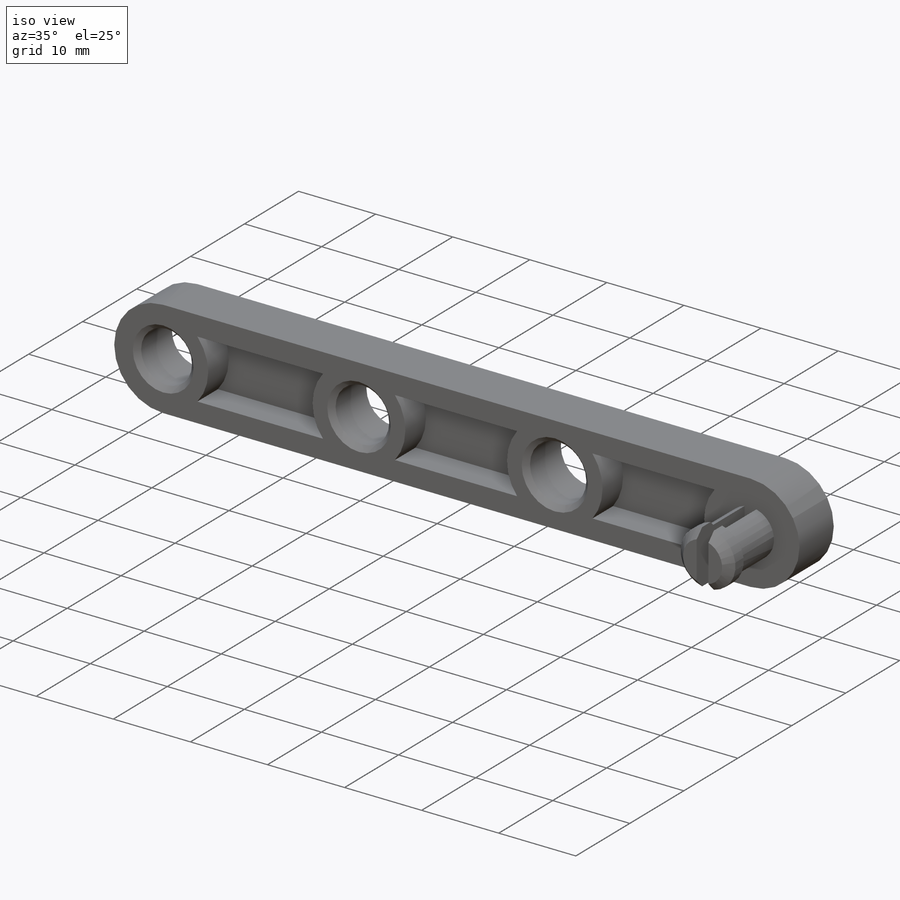
[diagram: iso view]
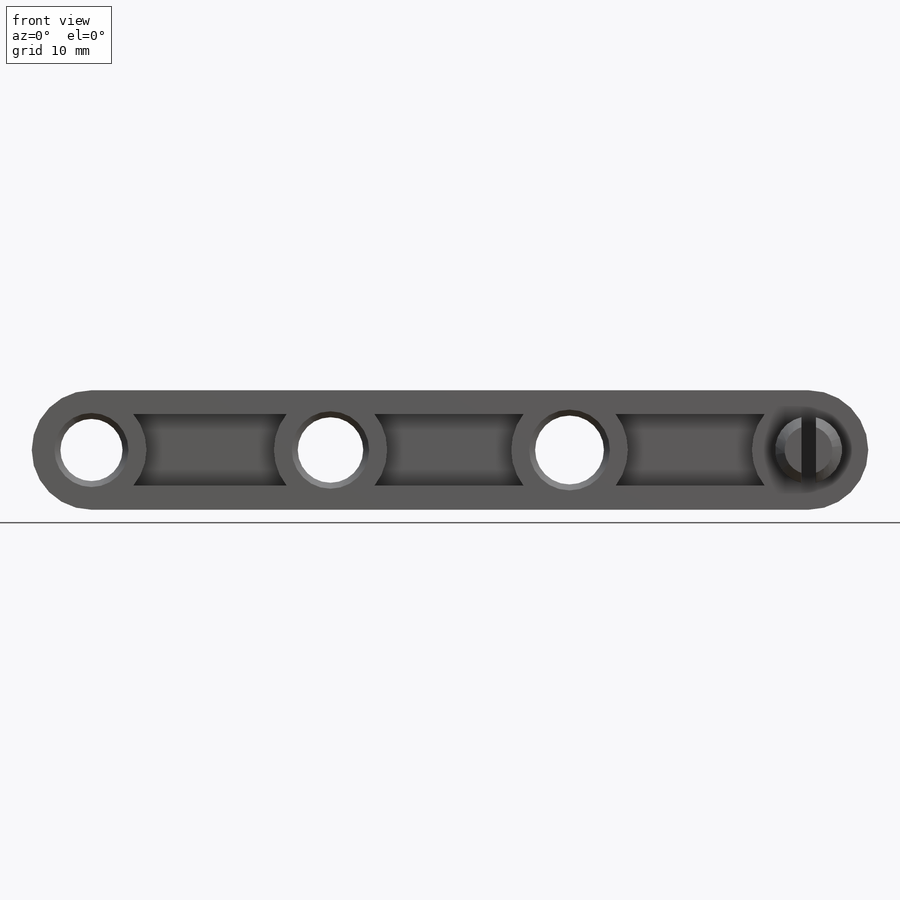
[diagram: front view]
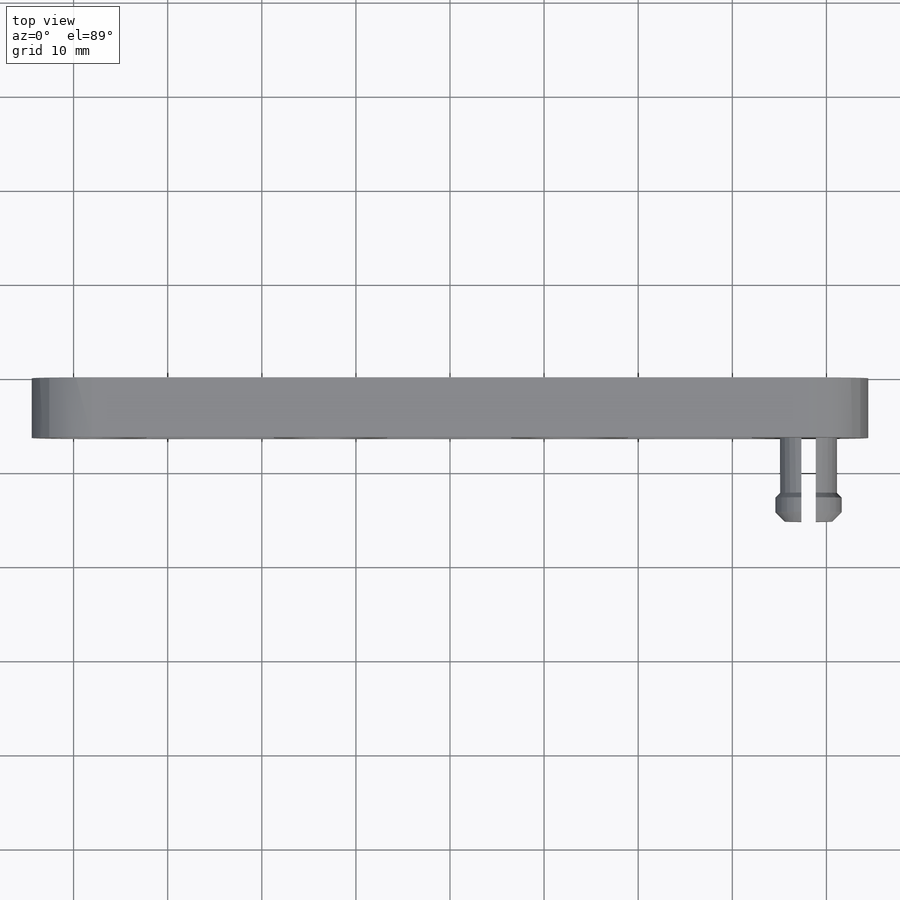
[diagram: top view]
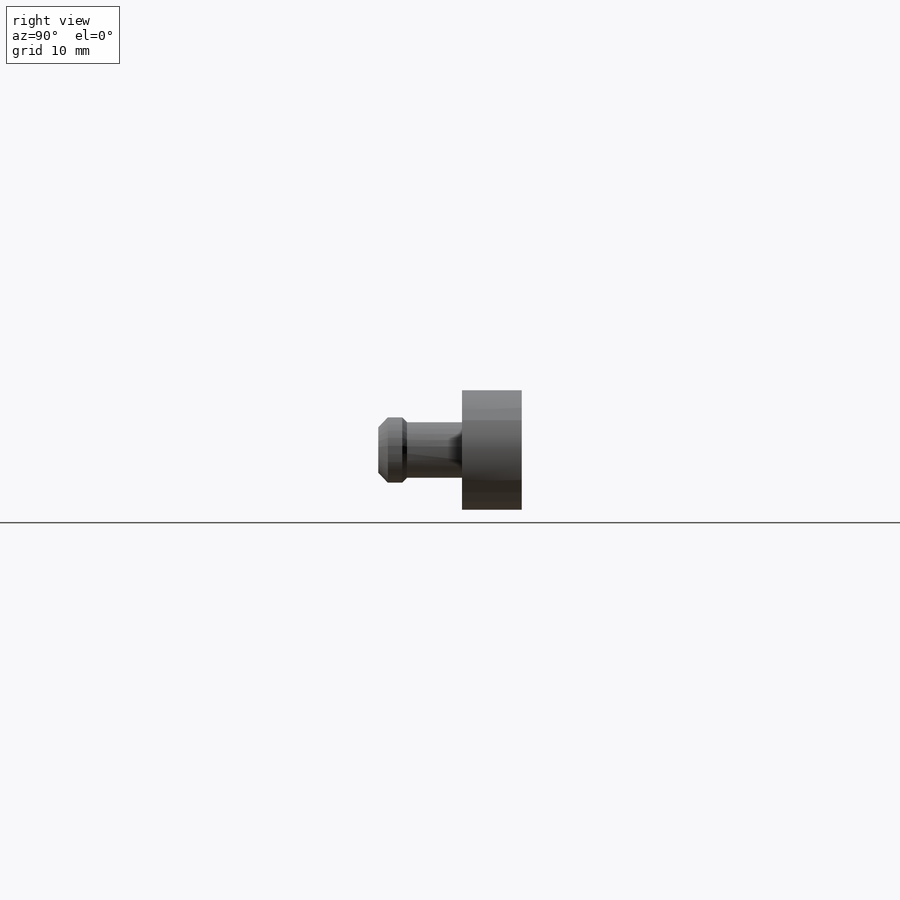
[diagram: right view]
SOLIDWORKS PART (.sldprt)
format: sldprt  version: not decoded by parser v0  size: 234,496 bytes
history: native  units: mm
features: sketch x5, extrude x2, cut_extrude x2, material x1, shell x1, revolve x1, chamfer x1 (+12 scaffold rows collapsed)
feature tree (25):
  scaffold x12  (default folders/planes/origin — collapsed)
  material  "ABS"
  sketch  "Sketch1"  dims[D1=76.2mm D2=12.7mm]
  extrude  "Boss-Extrude1"  Depth=6.35mm
  sketch  "Sketch2"  dims[c1.D1=6.604mm c1.D2=6.7056mm c1.D3=6.9596mm c1.D4=7.3152mm c2.D2=25.4mm c2.D5=25.4mm]
  cut_extrude  "Cut-Extrude1"  [1 undecoded]
  shell  "Shell5"  Thickness=2.54mm
  sketch  "Sketch5"
  extrude  "Boss-Extrude5"  [1 undecoded]
  sketch  "Sketch7"  dims[c1.D1=3.048mm c1.D2=6.35mm c1.D3=~0.854804mm c2.D3=135.0deg c2.D4=2.54mm c2.D5=2.54mm c2.D6=3.556mm]
  revolve  "Revolve1"  Angle=360deg
  sketch  "Sketch8"  dims[D1=1.524mm]
  cut_extrude  "Cut-Extrude2"  Depth=12.7mm
  chamfer  "Chamfer1"  Distance=0.635mm Angle=45deg
decode coverage: 9 of 12 modeling features carry decoded parameters
note: ~ marks probable driven/reference dimensions
note: 2 parameter values undecoded
note: suppression state not decoded; provenance and decode notes live in map.json
